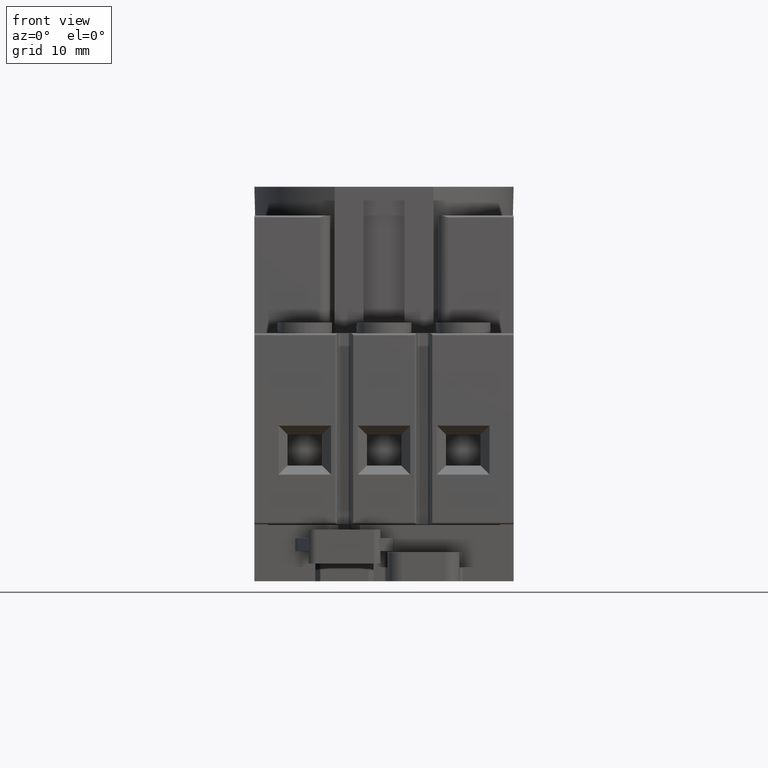
[diagram: clean part render]
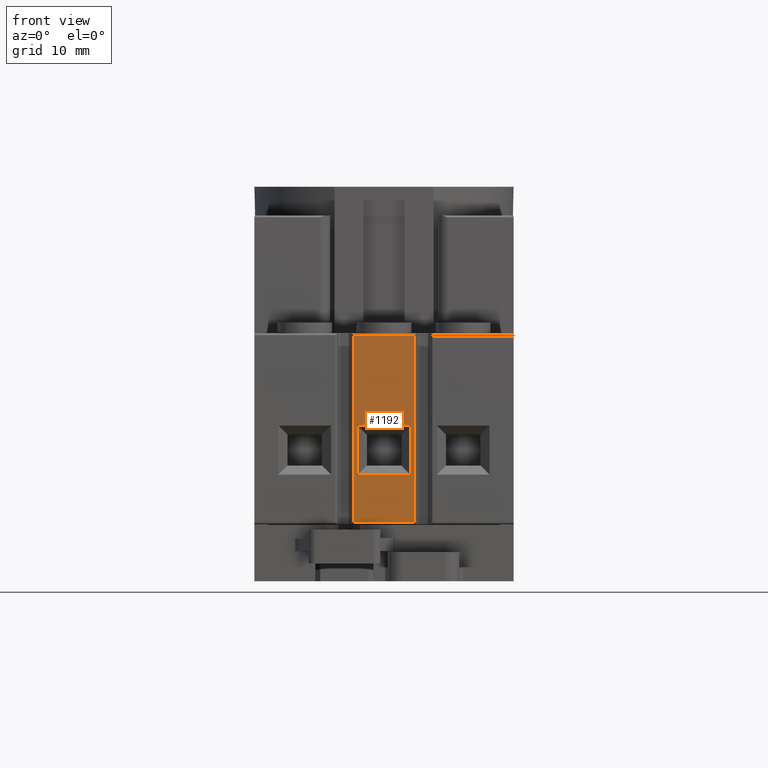
[diagram: same view with one face highlighted and labeled with its STEP entity id]
A machine part, front view. The second image highlights one B-rep face of the part: STEP entity #1192.
In plain terms, the highlighted planar face has unit normal (0, -1, -0).
Its self-contained STEP definition (entity closure, byte-faithful):
#547=B_SPLINE_CURVE_WITH_KNOTS('',3,(#14462,#14463,#14464,#14465,#14466,
#14467,#14468,#14469,#14470,#14471,#14472,#14473,#14474),.UNSPECIFIED.,.F.,
 .F.,(4,3,3,3,4),(0.,0.0181315082640731,0.110688393606552,0.480915934977248,
1.),.UNSPECIFIED.);
#548=B_SPLINE_CURVE_WITH_KNOTS('',3,(#14475,#14476,#14477,#14478,#14479,
#14480,#14481,#14482,#14483,#14484,#14485,#14486,#14487),.UNSPECIFIED.,.F.,
 .F.,(4,3,3,3,4),(0.,0.0181315069207656,0.110688386890018,0.480915906767806,
1.),.UNSPECIFIED.);
#1192=ADVANCED_FACE('',(#2002,#2003),#1670,.T.);
#1670=PLANE('',#10273);
#2002=FACE_BOUND('',#2209,.T.);
#2003=FACE_BOUND('',#2210,.T.);
#2209=EDGE_LOOP('',(#3600,#3601,#3602,#3603));
#2210=EDGE_LOOP('',(#3604,#3605,#3606,#3607));
#3600=ORIENTED_EDGE('',*,*,#6981,.T.);
#3601=ORIENTED_EDGE('',*,*,#6982,.T.);
#3602=ORIENTED_EDGE('',*,*,#6983,.T.);
#3603=ORIENTED_EDGE('',*,*,#6984,.T.);
#3604=ORIENTED_EDGE('',*,*,#6985,.T.);
#3605=ORIENTED_EDGE('',*,*,#6986,.T.);
#3606=ORIENTED_EDGE('',*,*,#6972,.F.);
#3607=ORIENTED_EDGE('',*,*,#6987,.F.);
#5943=VERTEX_POINT('',#14365);
#5944=VERTEX_POINT('',#14366);
#5950=VERTEX_POINT('',#14452);
#5951=VERTEX_POINT('',#14453);
#5952=VERTEX_POINT('',#14455);
#5953=VERTEX_POINT('',#14457);
#5954=VERTEX_POINT('',#14460);
#5955=VERTEX_POINT('',#14461);
#6972=EDGE_CURVE('',#5943,#5944,#8259,.T.);
#6981=EDGE_CURVE('',#5950,#5951,#8261,.T.);
#6982=EDGE_CURVE('',#5951,#5952,#8262,.T.);
#6983=EDGE_CURVE('',#5952,#5953,#8263,.T.);
#6984=EDGE_CURVE('',#5953,#5950,#8264,.T.);
#6985=EDGE_CURVE('',#5954,#5955,#8265,.T.);
#6986=EDGE_CURVE('',#5955,#5944,#547,.T.);
#6987=EDGE_CURVE('',#5954,#5943,#548,.T.);
#8259=LINE('',#14364,#9294);
#8261=LINE('',#14451,#9296);
#8262=LINE('',#14454,#9297);
#8263=LINE('',#14456,#9298);
#8264=LINE('',#14458,#9299);
#8265=LINE('',#14459,#9300);
#9294=VECTOR('',#11590,1.);
#9296=VECTOR('',#11604,1.);
#9297=VECTOR('',#11605,1.);
#9298=VECTOR('',#11606,1.);
#9299=VECTOR('',#11607,1.);
#9300=VECTOR('',#11608,1.);
#10273=AXIS2_PLACEMENT_3D('',#14488,#11609,#11610);
#11590=DIRECTION('',(1.,0.,0.));
#11604=DIRECTION('',(1.,0.,0.));
#11605=DIRECTION('',(1.71455227273751E-015,5.94131062828003E-006,-0.999999999982351));
#11606=DIRECTION('',(-1.,0.,0.));
#11607=DIRECTION('',(1.71455227273751E-015,-5.94131062828003E-006,0.999999999982351));
#11608=DIRECTION('',(1.,0.,0.));
#11609=DIRECTION('',(0.,-0.999999999982351,-5.94131062828003E-006));
#11610=DIRECTION('',(0.,5.9413106282824E-006,-0.999999999982351));
#14364=CARTESIAN_POINT('',(-18.,-31.4493269379709,-20.6656716018935));
#14365=CARTESIAN_POINT('',(-4.21489003931779,-31.4493269340541,-20.6656716019113));
#14366=CARTESIAN_POINT('',(4.21486338562254,-31.4493269340541,-20.6656716019113));
#14451=CARTESIAN_POINT('',(-18.,-31.4492525945773,-33.1779742594126));
#14452=CARTESIAN_POINT('',(-3.65,-31.4492525945773,-33.1779742594126));
#14453=CARTESIAN_POINT('',(3.65,-31.4492525945773,-33.1779742594126));
#14454=CARTESIAN_POINT('',(3.64999999999998,-31.4493269340541,-20.665671601894));
#14455=CARTESIAN_POINT('',(3.65000000000001,-31.4492121936651,-39.9779742595008));
#14456=CARTESIAN_POINT('',(-18.,-31.4492121936651,-39.9779742595008));
#14457=CARTESIAN_POINT('',(-3.65000000000001,-31.4492121936651,-39.9779742595008));
#14458=CARTESIAN_POINT('',(-3.64999999999998,-31.4493269340541,-20.665671601894));
#14459=CARTESIAN_POINT('',(-18.,-31.4491728758695,-46.595671601436));
#14460=CARTESIAN_POINT('',(-4.21707466346037,-31.4491728758698,-46.5956716014457));
#14461=CARTESIAN_POINT('',(4.21704798406714,-31.4491728758698,-46.5956716014457));
#14462=CARTESIAN_POINT('',(4.21704798406714,-31.4491728758698,-46.5956716014457));
#14463=CARTESIAN_POINT('',(4.21703543370793,-31.4491738069722,-46.4389549316317));
#14464=CARTESIAN_POINT('',(4.21702287249148,-31.4491747380743,-46.2822382618186));
#14465=CARTESIAN_POINT('',(4.217010300671,-31.4491756691768,-46.1255215920063));
#14466=CARTESIAN_POINT('',(4.2169461246229,-31.4491804222253,-45.3255215794419));
#14467=CARTESIAN_POINT('',(4.21688166828125,-31.4491851752739,-44.5255215668999));
#14468=CARTESIAN_POINT('',(4.21681692414447,-31.4491899283225,-43.7255215543813));
#14469=CARTESIAN_POINT('',(4.21655794759735,-31.4492089405168,-40.5255215043035));
#14470=CARTESIAN_POINT('',(4.21629437411603,-31.4492279527111,-37.3255214545936));
#14471=CARTESIAN_POINT('',(4.21602566836452,-31.4492469649054,-34.1255214053179));
#14472=CARTESIAN_POINT('',(4.21564892471852,-31.4492736212883,-29.6389048032725));
#14473=CARTESIAN_POINT('',(4.21526211767819,-31.4493002776712,-25.1522882020564));
#14474=CARTESIAN_POINT('',(4.21486338562254,-31.4493269340541,-20.6656716019113));
#14475=CARTESIAN_POINT('',(-4.21707466346037,-31.4491728758698,-46.5956716014457));
#14476=CARTESIAN_POINT('',(-4.21706211296898,-31.4491738069722,-46.4389549432423));
#14477=CARTESIAN_POINT('',(-4.21704955162032,-31.4491747380742,-46.2822382850399));
#14478=CARTESIAN_POINT('',(-4.21703697966699,-31.4491756691766,-46.1255216268382));
#14479=CARTESIAN_POINT('',(-4.21697280293968,-31.4491804222249,-45.3255216607164));
#14480=CARTESIAN_POINT('',(-4.21690834590994,-31.4491851752732,-44.525521694617));
#14481=CARTESIAN_POINT('',(-4.21684360107579,-31.4491899283215,-43.725521728541));
#14482=CARTESIAN_POINT('',(-4.21658462173918,-31.4492089405147,-40.5255218642335));
#14483=CARTESIAN_POINT('',(-4.21632104532047,-31.4492279527079,-37.3255220002939));
#14484=CARTESIAN_POINT('',(-4.21605233645373,-31.4492469649011,-34.1255221367886));
#14485=CARTESIAN_POINT('',(-4.21567558839761,-31.4492736212854,-29.6389052909196));
#14486=CARTESIAN_POINT('',(-4.21528877659761,-31.4493002776698,-25.15228844588));
#14487=CARTESIAN_POINT('',(-4.21489003931779,-31.4493269340541,-20.6656716019113));
#14488=CARTESIAN_POINT('',(-18.,-31.4493269340541,-20.665671601894));